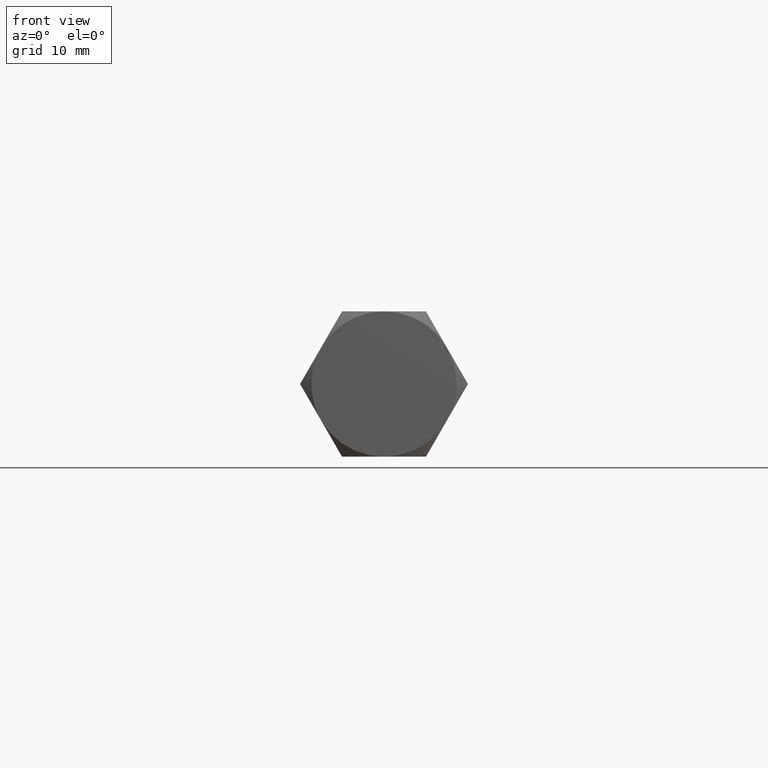
[diagram: clean part render]
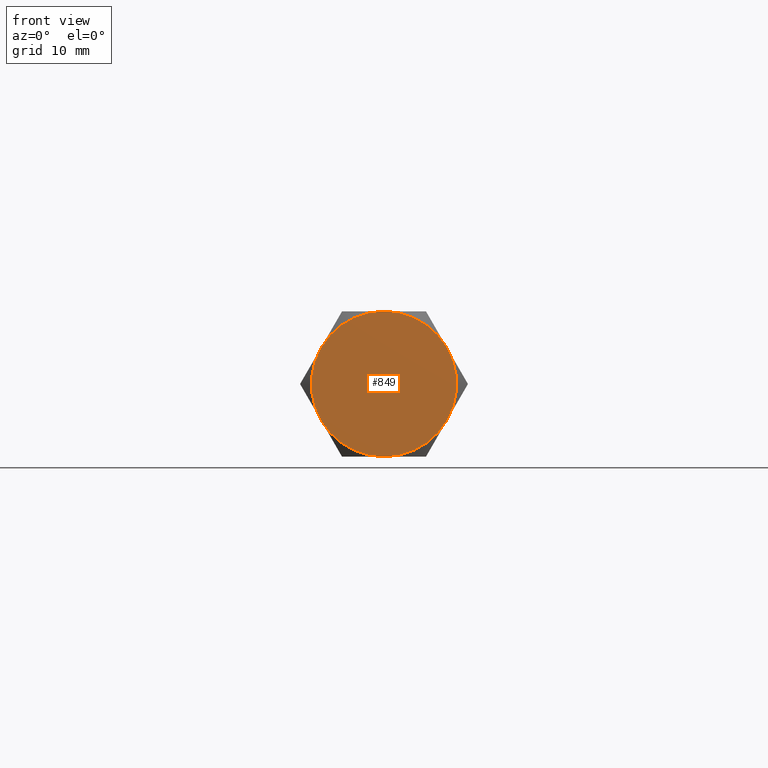
[diagram: same view with one face highlighted and labeled with its STEP entity id]
A machine part, front view. The second image highlights one B-rep face of the part: STEP entity #849.
In plain terms, the highlighted planar face has unit normal (0, 1, 0).
Its self-contained STEP definition (entity closure, byte-faithful):
#3 = CIRCLE ( 'NONE', #732, 8.499999999999998200 ) ;
#17 = ORIENTED_EDGE ( 'NONE', *, *, #260, .F. ) ;
#23 = DIRECTION ( 'NONE',  ( -0.0000000000000000000, 0.0000000000000000000, -1.000000000000000000 ) ) ;
#67 = DIRECTION ( 'NONE',  ( 1.000000000000000000, 0.0000000000000000000, -0.0000000000000000000 ) ) ;
#79 = EDGE_LOOP ( 'NONE', ( #850, #17, #312, #605, #883, #1164 ) ) ;
#115 = VERTEX_POINT ( 'NONE', #336 ) ;
#172 = CIRCLE ( 'NONE', #320, 8.499999999999998200 ) ;
#198 = DIRECTION ( 'NONE',  ( 1.000000000000000000, 0.0000000000000000000, -0.0000000000000000000 ) ) ;
#227 = CIRCLE ( 'NONE', #1082, 8.500000000000000000 ) ;
#235 = CARTESIAN_POINT ( 'NONE',  ( 0.0000000000000000000, 0.0000000000000000000, 0.0000000000000000000 ) ) ;
#239 = VERTEX_POINT ( 'NONE', #1162 ) ;
#245 = CARTESIAN_POINT ( 'NONE',  ( 0.0000000000000000000, 0.0000000000000000000, 0.0000000000000000000 ) ) ;
#260 = EDGE_CURVE ( 'NONE', #503, #1064, #3, .T. ) ;
#301 = EDGE_CURVE ( 'NONE', #239, #337, #227, .T. ) ;
#305 = CIRCLE ( 'NONE', #591, 8.499999999999998200 ) ;
#312 = ORIENTED_EDGE ( 'NONE', *, *, #627, .F. ) ;
#320 = AXIS2_PLACEMENT_3D ( 'NONE', #603, #383, #707 ) ;
#336 = CARTESIAN_POINT ( 'NONE',  ( 0.0000000000000000000, 7.361215932167722200, -4.250000000000011500 ) ) ;
#337 = VERTEX_POINT ( 'NONE', #891 ) ;
#383 = DIRECTION ( 'NONE',  ( 1.000000000000000000, 0.0000000000000000000, -0.0000000000000000000 ) ) ;
#480 = CIRCLE ( 'NONE', #819, 8.499999999999998200 ) ;
#496 = CARTESIAN_POINT ( 'NONE',  ( 0.0000000000000000000, -7.361215932167720400, 4.250000000000016900 ) ) ;
#497 = AXIS2_PLACEMENT_3D ( 'NONE', #245, #67, #719 ) ;
#503 = VERTEX_POINT ( 'NONE', #534 ) ;
#533 = CIRCLE ( 'NONE', #497, 8.499999999999998200 ) ;
#534 = CARTESIAN_POINT ( 'NONE',  ( 0.0000000000000000000, -7.361215932167732800, -4.249999999999995600 ) ) ;
#587 = CARTESIAN_POINT ( 'NONE',  ( 0.0000000000000000000, 0.0000000000000000000, 0.0000000000000000000 ) ) ;
#591 = AXIS2_PLACEMENT_3D ( 'NONE', #613, #1356, #716 ) ;
#603 = CARTESIAN_POINT ( 'NONE',  ( 0.0000000000000000000, 0.0000000000000000000, 0.0000000000000000000 ) ) ;
#605 = ORIENTED_EDGE ( 'NONE', *, *, #1262, .F. ) ;
#613 = CARTESIAN_POINT ( 'NONE',  ( 0.0000000000000000000, 0.0000000000000000000, 0.0000000000000000000 ) ) ;
#627 = EDGE_CURVE ( 'NONE', #642, #503, #533, .T. ) ;
#642 = VERTEX_POINT ( 'NONE', #496 ) ;
#698 = DIRECTION ( 'NONE',  ( 0.0000000000000000000, 0.0000000000000000000, -1.000000000000000000 ) ) ;
#707 = DIRECTION ( 'NONE',  ( 0.0000000000000000000, 0.0000000000000000000, -1.000000000000000000 ) ) ;
#716 = DIRECTION ( 'NONE',  ( 0.0000000000000000000, 0.0000000000000000000, -1.000000000000000000 ) ) ;
#719 = DIRECTION ( 'NONE',  ( 0.0000000000000000000, 0.0000000000000000000, -1.000000000000000000 ) ) ;
#732 = AXIS2_PLACEMENT_3D ( 'NONE', #235, #198, #1057 ) ;
#737 = EDGE_CURVE ( 'NONE', #115, #337, #172, .T. ) ;
#819 = AXIS2_PLACEMENT_3D ( 'NONE', #587, #1336, #698 ) ;
#822 = DIRECTION ( 'NONE',  ( 1.000000000000000000, 0.0000000000000000000, -0.0000000000000000000 ) ) ;
#849 = ADVANCED_FACE ( 'NONE', ( #877 ), #928, .F. ) ;
#850 = ORIENTED_EDGE ( 'NONE', *, *, #1363, .F. ) ;
#862 = CARTESIAN_POINT ( 'NONE',  ( 0.0000000000000000000, 0.0000000000000000000, 0.0000000000000000000 ) ) ;
#877 = FACE_OUTER_BOUND ( 'NONE', #79, .T. ) ;
#883 = ORIENTED_EDGE ( 'NONE', *, *, #301, .T. ) ;
#891 = CARTESIAN_POINT ( 'NONE',  ( 0.0000000000000000000, 7.361215932167724000, 4.250000000000009800 ) ) ;
#928 = PLANE ( 'NONE',  #1110 ) ;
#1057 = DIRECTION ( 'NONE',  ( 0.0000000000000000000, 0.0000000000000000000, -1.000000000000000000 ) ) ;
#1058 = CARTESIAN_POINT ( 'NONE',  ( 0.0000000000000000000, 1.502314598737159600E-015, -8.500000000000000000 ) ) ;
#1064 = VERTEX_POINT ( 'NONE', #1058 ) ;
#1082 = AXIS2_PLACEMENT_3D ( 'NONE', #862, #1150, #1090 ) ;
#1090 = DIRECTION ( 'NONE',  ( 0.0000000000000000000, 0.0000000000000000000, 1.000000000000000000 ) ) ;
#1110 = AXIS2_PLACEMENT_3D ( 'NONE', #1204, #822, #23 ) ;
#1150 = DIRECTION ( 'NONE',  ( -1.000000000000000000, -0.0000000000000000000, -0.0000000000000000000 ) ) ;
#1162 = CARTESIAN_POINT ( 'NONE',  ( 0.0000000000000000000, 0.0000000000000000000, 8.500000000000000000 ) ) ;
#1164 = ORIENTED_EDGE ( 'NONE', *, *, #737, .F. ) ;
#1204 = CARTESIAN_POINT ( 'NONE',  ( 0.0000000000000000000, 9.814954576223648500, -1.850927914596626500E-015 ) ) ;
#1262 = EDGE_CURVE ( 'NONE', #239, #642, #480, .T. ) ;
#1336 = DIRECTION ( 'NONE',  ( 1.000000000000000000, 0.0000000000000000000, -0.0000000000000000000 ) ) ;
#1356 = DIRECTION ( 'NONE',  ( 1.000000000000000000, 0.0000000000000000000, -0.0000000000000000000 ) ) ;
#1363 = EDGE_CURVE ( 'NONE', #1064, #115, #305, .T. ) ;